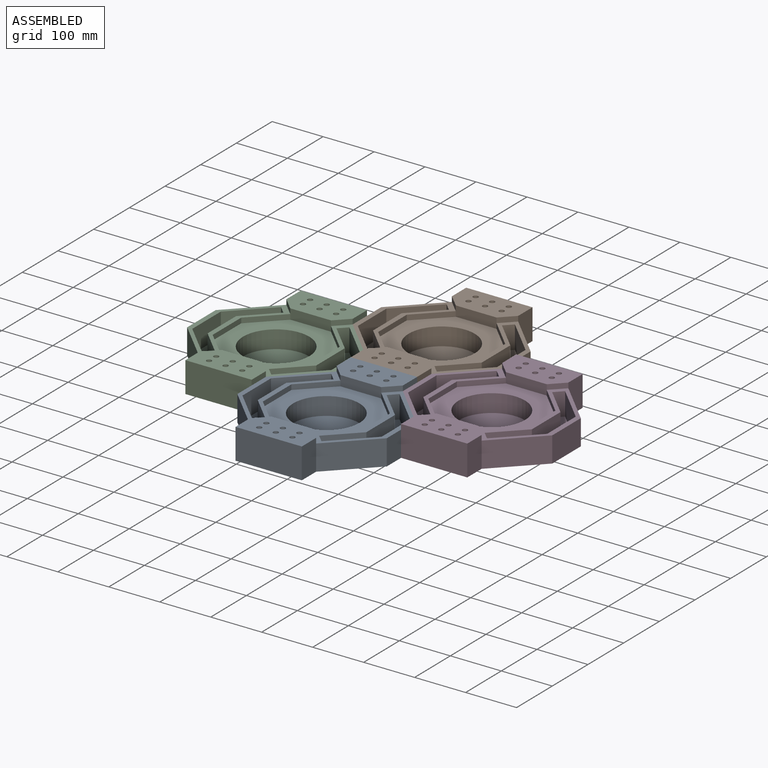
[diagram: assembled view]
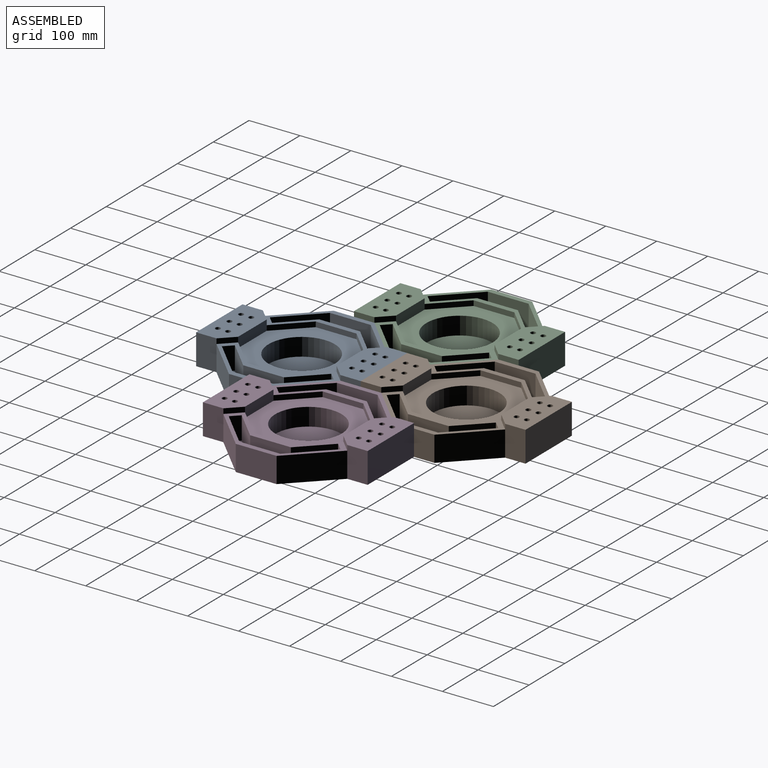
[diagram: assembled view, second angle]
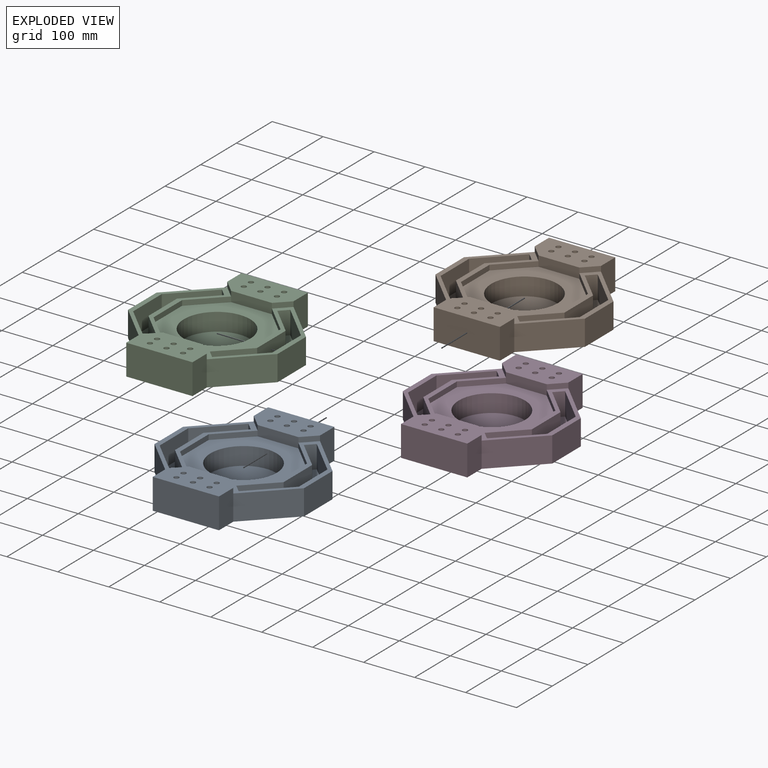
[diagram: exploded view]
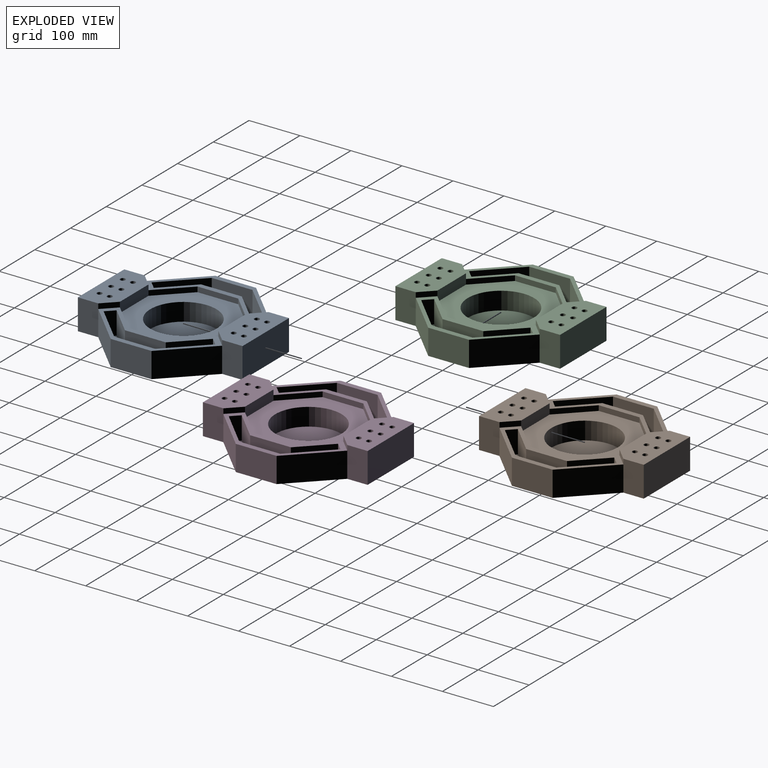
[diagram: exploded view, second angle]
ASSEMBLY  parts=4 mates=3
PART A: 74 faces, bbox 293.1x323.1x60 mm
  f0: plane 80x45mm, normal (-1,0,0), area 3600mm2, adj f36,f37,f43,f64
  f1: cylinder r=65mm len=130mm, axis (0,0,-1), area 14294.2mm2, adj f2,f59
  f2: plane 193.14x193.14mm, normal (0,0,1), area 17628.7mm2, adj f1,f15,f18,f30,f31,f32,f44,f45
  f3: plane 323.14x293.14mm, normal (0,0,-1), area 68365.6mm2, adj f5,f6,f7,f20,f21,f27,f33,f34
  f4: plane 25x25mm, normal (0.71,-0.71,0), area 353.6mm2, adj f5,f15,f16,f43
  f5: plane 60x40mm, normal (1,0,0), area 2400mm2, adj f3,f4,f6,f16,f42
  f6: plane 130x60mm, normal (0,1,0), area 7800mm2, adj f3,f5,f7,f16
  f7: plane 60x40mm, normal (-1,0,0), area 2400mm2, adj f3,f6,f8,f16,f46
  f8: plane 25x25mm, normal (-0.71,-0.71,0), area 353.6mm2, adj f7,f15,f16,f58
  f9: cylinder r=5mm len=55mm, axis (0,0,-1), area 1727.9mm2, adj f16,f63
  f10: cylinder r=5mm len=55mm, axis (0,0,-1), area 1727.9mm2, adj f16,f62
  f11: cylinder r=5mm len=55mm, axis (0,0,-1), area 1727.9mm2, adj f16,f69
  f12: cylinder r=5mm len=55mm, axis (0,0,-1), area 1727.9mm2, adj f16,f70
  f13: cylinder r=5mm len=55mm, axis (0,0,-1), area 1727.9mm2, adj f16,f61
  f14: cylinder r=5mm len=55mm, axis (0,0,-1), area 1727.9mm2, adj f16,f60
  f15: plane 80x20mm, normal (0,-1,0), area 1600mm2, adj f2,f4,f8,f16,f30,f44
  f16: plane 130x65mm, normal (0,0,1), area 7353.8mm2, adj f4,f5,f6,f7,f8,f9,f10,f11
  f17: plane 25x25mm, normal (0.71,0.71,0), area 353.6mm2, adj f18,f27,f29,f43
  f18: plane 80x20mm, normal (0,1,0), area 1600mm2, adj f2,f17,f19,f29,f31,f45
  f19: plane 25x25mm, normal (-0.71,0.71,0), area 353.6mm2, adj f18,f20,f29,f58
  f20: plane 60x40mm, normal (-1,0,0), area 2400mm2, adj f3,f19,f21,f29,f48
  f21: plane 130x60mm, normal (0,-1,0), area 7800mm2, adj f3,f20,f27,f29
  f22: cylinder r=5mm len=55mm, axis (0,0,-1), area 1727.9mm2, adj f29,f66
  f23: cylinder r=5mm len=55mm, axis (0,0,-1), area 1727.9mm2, adj f29,f67
  f24: cylinder r=5mm len=55mm, axis (0,0,-1), area 1727.9mm2, adj f29,f73
  f25: cylinder r=5mm len=55mm, axis (0,0,-1), area 1727.9mm2, adj f29,f72
  f26: cylinder r=5mm len=55mm, axis (0,0,-1), area 1727.9mm2, adj f29,f68
  f27: plane 60x40mm, normal (1,0,0), area 2400mm2, adj f3,f17,f21,f29,f33
  f28: cylinder r=5mm len=55mm, axis (0,0,-1), area 1727.9mm2, adj f29,f65
  f29: plane 130x65mm, normal (0,0,1), area 7353.8mm2, adj f17,f18,f19,f20,f21,f22,f23,f24
  f30: plane 56.57x56.57mm, normal (-0.71,-0.71,0), area 800mm2, adj f2,f15,f32,f43
  f31: plane 56.57x56.57mm, normal (-0.71,0.71,0), area 800mm2, adj f2,f18,f32,f43
  f32: plane 80x10mm, normal (-1,0,0), area 800mm2, adj f2,f30,f31,f43
  f33: plane 81.57x81.57mm, normal (0.71,-0.71,0), area 5767.8mm2, adj f3,f27,f34,f43
  f34: plane 80x50mm, normal (1,0,0), area 4000mm2, adj f3,f33,f42,f43
  f35: plane 45x15mm, normal (0.71,-0.71,0), area 954.6mm2, adj f36,f41,f43,f64
  f36: plane 69.5x69.5mm, normal (-0.71,-0.71,0), area 4422.8mm2, adj f0,f35,f43,f64
  f37: plane 69.5x69.5mm, normal (-0.71,0.71,0), area 4422.8mm2, adj f0,f38,f43,f64
  f38: plane 45x15mm, normal (0.71,0.71,0), area 954.6mm2, adj f37,f39,f43,f64
  f39: plane 54.5x54.5mm, normal (0.71,-0.71,0), area 3468.2mm2, adj f38,f40,f43,f64
  f40: plane 80x45mm, normal (1,0,0), area 3600mm2, adj f39,f41,f43,f64
  f41: plane 54.5x54.5mm, normal (0.71,0.71,0), area 3468.2mm2, adj f35,f40,f43,f64
  f42: plane 81.57x81.57mm, normal (0.71,0.71,0), area 5767.8mm2, adj f3,f5,f34,f43
  f43: plane 243.14x106.57mm, normal (0,0,1), area 4787mm2, adj f0,f4,f17,f30,f31,f32,f33,f34
  f44: plane 56.57x56.57mm, normal (0.71,-0.71,0), area 800mm2, adj f2,f15,f57,f58
  f45: plane 56.57x56.57mm, normal (0.71,0.71,0), area 800mm2, adj f2,f18,f57,f58
  f46: plane 81.57x81.57mm, normal (-0.71,0.71,0), area 5767.8mm2, adj f3,f7,f47,f58
  f47: plane 80x50mm, normal (-1,0,0), area 4000mm2, adj f3,f46,f48,f58
  f48: plane 81.57x81.57mm, normal (-0.71,-0.71,0), area 5767.8mm2, adj f3,f20,f47,f58
  f49: plane 80x45mm, normal (1,0,0), area 3600mm2, adj f50,f56,f58,f71
  f50: plane 69.5x69.5mm, normal (0.71,-0.71,0), area 4422.8mm2, adj f49,f51,f58,f71
  f51: plane 45x15mm, normal (-0.71,-0.71,0), area 954.6mm2, adj f50,f52,f58,f71
  f52: plane 54.5x54.5mm, normal (-0.71,0.71,0), area 3468.2mm2, adj f51,f53,f58,f71
  f53: plane 80x45mm, normal (-1,0,0), area 3600mm2, adj f52,f54,f58,f71
  f54: plane 54.5x54.5mm, normal (-0.71,-0.71,0), area 3468.2mm2, adj f53,f55,f58,f71
  f55: plane 45x15mm, normal (-0.71,0.71,0), area 954.6mm2, adj f54,f56,f58,f71
  f56: plane 69.5x69.5mm, normal (0.71,0.71,0), area 4422.8mm2, adj f49,f55,f58,f71
  f57: plane 80x10mm, normal (1,0,0), area 800mm2, adj f2,f44,f45,f58
  f58: plane 243.14x106.57mm, normal (0,0,1), area 4787mm2, adj f8,f19,f44,f45,f46,f47,f48,f49
  f59: plane 130x130mm, normal (0,0,1), area 13273.2mm2, adj f1
  f60: plane 10x10mm, normal (0,0,1), area 78.5mm2, adj f14
  f61: plane 10x10mm, normal (0,0,1), area 78.5mm2, adj f13
  f62: plane 10x10mm, normal (0,0,1), area 78.5mm2, adj f10
  f63: plane 10x10mm, normal (0,0,1), area 78.5mm2, adj f9
  f64: plane 219x84.5mm, normal (0,0,1), area 6119.8mm2, adj f0,f35,f36,f37,f38,f39,f40,f41
  f65: plane 10x10mm, normal (0,0,1), area 78.5mm2, adj f28
  f66: plane 10x10mm, normal (0,0,1), area 78.5mm2, adj f22
  f67: plane 10x10mm, normal (0,0,1), area 78.5mm2, adj f23
  f68: plane 10x10mm, normal (0,0,1), area 78.5mm2, adj f26
  f69: plane 10x10mm, normal (0,0,1), area 78.5mm2, adj f11
  f70: plane 10x10mm, normal (0,0,1), area 78.5mm2, adj f12
  f71: plane 219x84.5mm, normal (0,0,1), area 6119.8mm2, adj f49,f50,f51,f52,f53,f54,f55,f56
  f72: plane 10x10mm, normal (0,0,1), area 78.5mm2, adj f25
  f73: plane 10x10mm, normal (0,0,1), area 78.5mm2, adj f24
PART B: same geometry as A
PART C: same geometry as A
PART D: same geometry as A
PLACE A t=(-125.41,-354.15,32.08)mm
PLACE B t=(-125.41,-31.02,32.08)mm
PLACE C t=(-336.98,-192.59,32.08)mm
PLACE D t=(86.16,-192.59,32.08)mm
MATE fastened C.f34 <-> A.f7  axis (1,0,0) through (-190.41,-192.59,57.08)mm
MATE fastened A.f6 <-> B.f21  axis (0,1,0) through (-125.41,-192.59,62.08)mm
MATE fastened D.f47 <-> B.f27  axis (-1,0,0) through (-60.41,-192.59,57.08)mm
